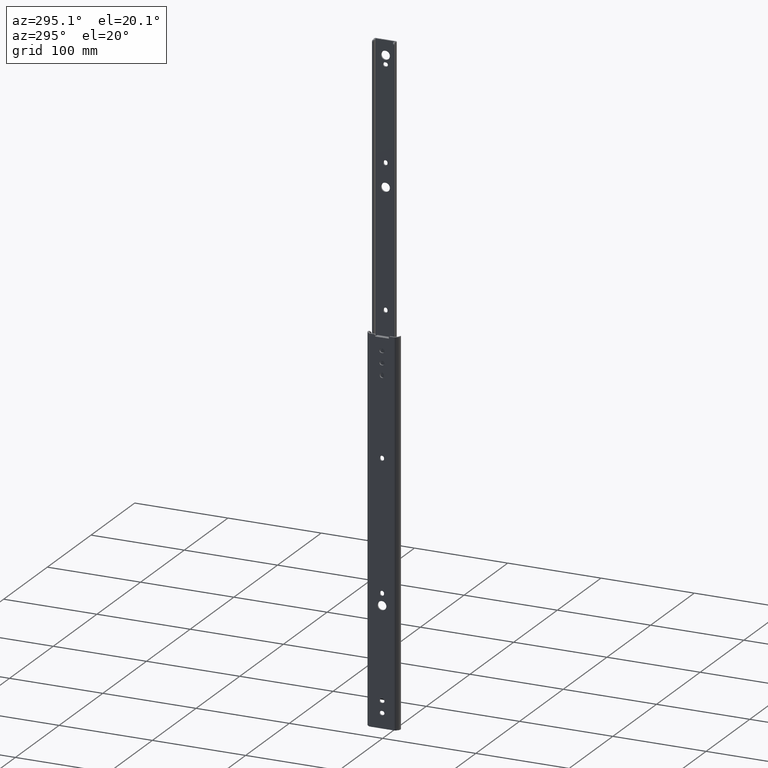
[diagram: clean part render]
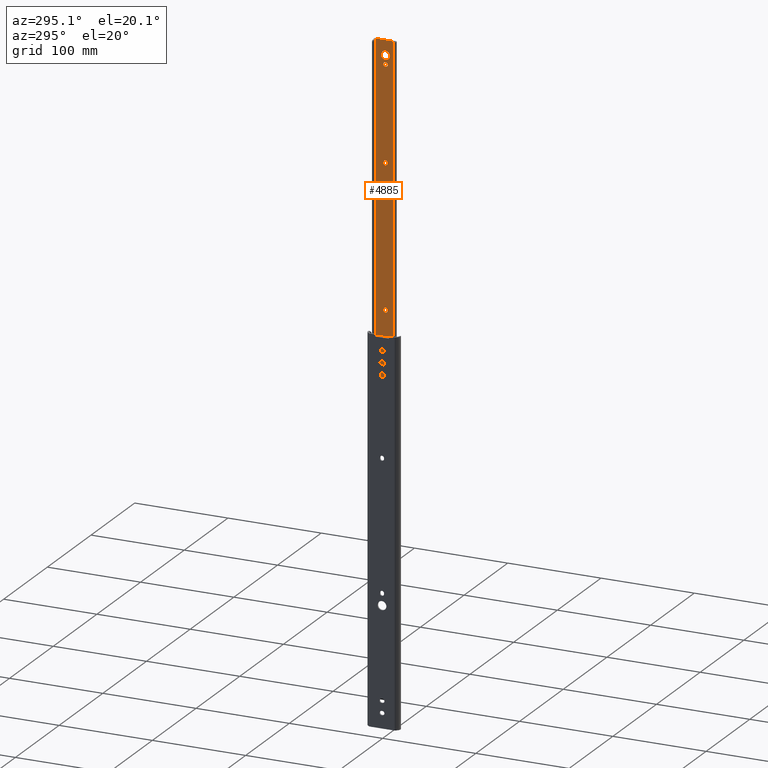
[diagram: same view with one face highlighted and labeled with its STEP entity id]
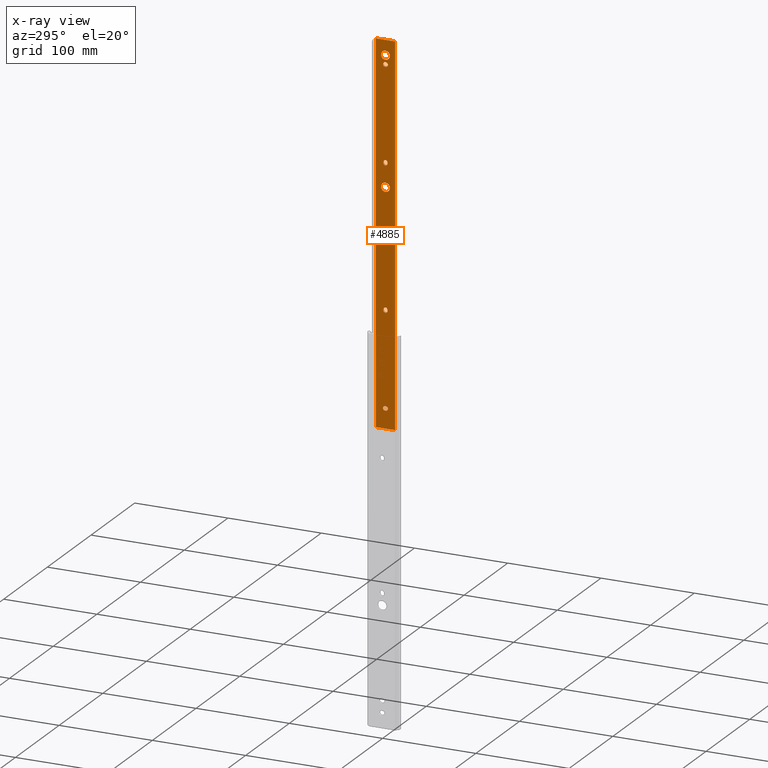
[diagram: x-ray of the same camera — body ghosted, the highlighted face saturated]
A machine part, auxiliary view. The second image highlights one B-rep face of the part: STEP entity #4885.
The next image is the same camera in x-ray: the body ghosted, the highlighted face saturated — about 0% of this face is hidden behind the body in this view.
In plain terms, the highlighted planar face has unit normal (-1, -0, 0).
Its self-contained STEP definition (entity closure, byte-faithful):
#6 = CARTESIAN_POINT ( 'NONE',  ( -1.500000000000004441, 0.3999999999999817590, -381.0000000000000000 ) ) ;
#9 = DIRECTION ( 'NONE',  ( -1.098658201451976985E-14, 1.000000000000000000, 0.0000000000000000000 ) ) ;
#10 = DIRECTION ( 'NONE',  ( -1.103235306215530262E-14, 1.000000000000000000, 0.0000000000000000000 ) ) ;
#15 = DIRECTION ( 'NONE',  ( -1.098658201451977774E-14, 1.000000000000000000, 0.0000000000000000000 ) ) ;
#46 = CARTESIAN_POINT ( 'NONE',  ( -1.500000000000004441, 0.3999999999999975797, -27.65000000000000924 ) ) ;
#88 = EDGE_CURVE ( 'NONE', #4028, #108, #2338, .T. ) ;
#101 = EDGE_LOOP ( 'NONE', ( #2858, #4661 ) ) ;
#108 = VERTEX_POINT ( 'NONE', #1914 ) ;
#169 = ORIENTED_EDGE ( 'NONE', *, *, #4154, .T. ) ;
#212 = PLANE ( 'NONE',  #3361 ) ;
#233 = CARTESIAN_POINT ( 'NONE',  ( -1.499999999999995781, -0.4000000000000085154, -381.0000000000000000 ) ) ;
#253 = CARTESIAN_POINT ( 'NONE',  ( -1.499999999999975353, -2.249999999999992450, -279.0000000000000000 ) ) ;
#268 = VERTEX_POINT ( 'NONE', #2383 ) ;
#279 = CARTESIAN_POINT ( 'NONE',  ( -1.500000000000052403, 4.749999999999985789, -15.90000000000000036 ) ) ;
#284 = AXIS2_PLACEMENT_3D ( 'NONE', #796, #4646, #15 ) ;
#291 = CIRCLE ( 'NONE', #940, 2.250000000000000000 ) ;
#300 = VERTEX_POINT ( 'NONE', #46 ) ;
#323 = CARTESIAN_POINT ( 'NONE',  ( -1.499999999999881872, -10.00000000000000000, -401.9000000000000341 ) ) ;
#328 = DIRECTION ( 'NONE',  ( -1.098658201451977774E-14, 1.000000000000000000, 0.0000000000000000000 ) ) ;
#330 = VERTEX_POINT ( 'NONE', #3162 ) ;
#345 = VERTEX_POINT ( 'NONE', #1419 ) ;
#365 = CIRCLE ( 'NONE', #2377, 2.250000000000000000 ) ;
#399 = DIRECTION ( 'NONE',  ( -0.0000000000000000000, -0.0000000000000000000, 1.000000000000000000 ) ) ;
#405 = ORIENTED_EDGE ( 'NONE', *, *, #4672, .T. ) ;
#418 = EDGE_CURVE ( 'NONE', #3785, #300, #3705, .T. ) ;
#422 = CARTESIAN_POINT ( 'NONE',  ( -1.500000000000085043, 10.28327591912169048, 0.0000000000000000000 ) ) ;
#448 = VECTOR ( 'NONE', #2093, 1000.000000000000000 ) ;
#454 = ORIENTED_EDGE ( 'NONE', *, *, #4979, .T. ) ;
#461 = EDGE_LOOP ( 'NONE', ( #454, #3301, #3977, #3015, #682 ) ) ;
#468 = VECTOR ( 'NONE', #399, 1000.000000000000000 ) ;
#529 = VERTEX_POINT ( 'NONE', #2575 ) ;
#562 = CARTESIAN_POINT ( 'NONE',  ( -1.500000000000004441, 0.3999999999999817590, -381.0000000000000000 ) ) ;
#565 = CARTESIAN_POINT ( 'NONE',  ( -1.500000000000000000, -1.460134118258866334E-14, -15.90000000000000036 ) ) ;
#578 = DIRECTION ( 'NONE',  ( -1.104744950490492665E-14, 1.000000000000000000, 0.0000000000000000000 ) ) ;
#613 = DIRECTION ( 'NONE',  ( -1.000000000000000000, -1.107052159315210633E-14, 0.0000000000000000000 ) ) ;
#627 = CARTESIAN_POINT ( 'NONE',  ( -1.499999999999975353, -2.250000000000000888, -126.6000000000000227 ) ) ;
#637 = EDGE_CURVE ( 'NONE', #300, #268, #3323, .T. ) ;
#643 = VERTEX_POINT ( 'NONE', #3061 ) ;
#679 = EDGE_CURVE ( 'NONE', #2267, #729, #1455, .T. ) ;
#682 = ORIENTED_EDGE ( 'NONE', *, *, #1785, .T. ) ;
#684 = VERTEX_POINT ( 'NONE', #1889 ) ;
#689 = FACE_BOUND ( 'NONE', #3368, .T. ) ;
#729 = VERTEX_POINT ( 'NONE', #3799 ) ;
#749 = DIRECTION ( 'NONE',  ( 1.103235306215530105E-14, -1.000000000000000000, -0.0000000000000000000 ) ) ;
#759 = ORIENTED_EDGE ( 'NONE', *, *, #4678, .F. ) ;
#794 = AXIS2_PLACEMENT_3D ( 'NONE', #4060, #3362, #4438 ) ;
#796 = CARTESIAN_POINT ( 'NONE',  ( -1.500000000000000000, 7.537566158524680055E-15, -279.7999999999999545 ) ) ;
#806 = CARTESIAN_POINT ( 'NONE',  ( -1.499999999999881872, -10.00000000000000000, -401.9000000000000341 ) ) ;
#827 = DIRECTION ( 'NONE',  ( -1.192622389734054877E-16, -1.000000000000000000, -0.0000000000000000000 ) ) ;
#935 = ORIENTED_EDGE ( 'NONE', *, *, #88, .T. ) ;
#940 = AXIS2_PLACEMENT_3D ( 'NONE', #1564, #2646, #328 ) ;
#961 = VERTEX_POINT ( 'NONE', #2902 ) ;
#964 = DIRECTION ( 'NONE',  ( 1.000000000000000000, 1.103235306215530262E-14, 0.0000000000000000000 ) ) ;
#975 = CARTESIAN_POINT ( 'NONE',  ( -1.500000000000000000, -6.121118908110998907E-12, -152.4000000000000909 ) ) ;
#1056 = VERTEX_POINT ( 'NONE', #4815 ) ;
#1072 = CARTESIAN_POINT ( 'NONE',  ( -1.500000000000110800, 9.999999999999998224, -401.8999999999999204 ) ) ;
#1125 = CARTESIAN_POINT ( 'NONE',  ( -1.500000000000024647, 2.249999999999999112, -127.3999999999999915 ) ) ;
#1130 = LINE ( 'NONE', #4170, #2612 ) ;
#1200 = ORIENTED_EDGE ( 'NONE', *, *, #1447, .T. ) ;
#1221 = CARTESIAN_POINT ( 'NONE',  ( -1.499999999999882316, -10.28327591912161054, -403.4000000000000341 ) ) ;
#1262 = DIRECTION ( 'NONE',  ( 0.0000000000000000000, 0.0000000000000000000, -1.000000000000000000 ) ) ;
#1308 = CARTESIAN_POINT ( 'NONE',  ( -1.500000000000029088, 2.649999999999845368, -381.0000000000000000 ) ) ;
#1321 = VERTEX_POINT ( 'NONE', #4340 ) ;
#1340 = DIRECTION ( 'NONE',  ( -1.098658201451977774E-14, 1.000000000000000000, 0.0000000000000000000 ) ) ;
#1345 = AXIS2_PLACEMENT_3D ( 'NONE', #3019, #4829, #1457 ) ;
#1346 = FACE_OUTER_BOUND ( 'NONE', #4564, .T. ) ;
#1362 = CARTESIAN_POINT ( 'NONE',  ( -1.499999999999881872, -10.00000000000000000, -403.4000000000000341 ) ) ;
#1365 = EDGE_CURVE ( 'NONE', #330, #1520, #4384, .T. ) ;
#1385 = DIRECTION ( 'NONE',  ( 1.000000000000000000, 1.103235306215530262E-14, 0.0000000000000000000 ) ) ;
#1403 = CARTESIAN_POINT ( 'NONE',  ( -1.500000000000024647, 2.250000000000007105, -279.0000000000000000 ) ) ;
#1419 = CARTESIAN_POINT ( 'NONE',  ( -1.499999999999995781, -0.4000000000000093481, -378.7500000000001137 ) ) ;
#1427 = VERTEX_POINT ( 'NONE', #1362 ) ;
#1428 = VECTOR ( 'NONE', #827, 1000.000000000000000 ) ;
#1433 = ORIENTED_EDGE ( 'NONE', *, *, #418, .T. ) ;
#1447 = EDGE_CURVE ( 'NONE', #4104, #2177, #4857, .T. ) ;
#1455 = LINE ( 'NONE', #2584, #3407 ) ;
#1457 = DIRECTION ( 'NONE',  ( -1.098658201451976985E-14, 1.000000000000000000, 0.0000000000000000000 ) ) ;
#1503 = CARTESIAN_POINT ( 'NONE',  ( -1.500000000000024647, 2.250000000000007105, -279.0000000000000000 ) ) ;
#1508 = CIRCLE ( 'NONE', #1825, 4.750000000000000888 ) ;
#1520 = VERTEX_POINT ( 'NONE', #1308 ) ;
#1549 = DIRECTION ( 'NONE',  ( 1.000000000000000000, 1.103235306215530262E-14, 0.0000000000000000000 ) ) ;
#1552 = LINE ( 'NONE', #806, #1428 ) ;
#1553 = DIRECTION ( 'NONE',  ( 0.0000000000000000000, 0.0000000000000000000, -1.000000000000000000 ) ) ;
#1564 = CARTESIAN_POINT ( 'NONE',  ( -1.500000000000000000, -9.270955371676162504E-16, -126.6000000000000227 ) ) ;
#1597 = CIRCLE ( 'NONE', #3284, 2.249999999999863221 ) ;
#1618 = ORIENTED_EDGE ( 'NONE', *, *, #2018, .T. ) ;
#1663 = CARTESIAN_POINT ( 'NONE',  ( -1.500000000000085043, 10.28327591912169048, -403.4000000000000341 ) ) ;
#1746 = DIRECTION ( 'NONE',  ( 1.000000000000000000, 1.103235306215530262E-14, 0.0000000000000000000 ) ) ;
#1770 = DIRECTION ( 'NONE',  ( -1.098658201452044669E-14, 1.000000000000000000, 0.0000000000000000000 ) ) ;
#1775 = VERTEX_POINT ( 'NONE', #1072 ) ;
#1785 = EDGE_CURVE ( 'NONE', #3241, #345, #1130, .T. ) ;
#1799 = VERTEX_POINT ( 'NONE', #2928 ) ;
#1825 = AXIS2_PLACEMENT_3D ( 'NONE', #4359, #964, #578 ) ;
#1886 = LINE ( 'NONE', #3423, #3519 ) ;
#1889 = CARTESIAN_POINT ( 'NONE',  ( -1.499999999999882316, -10.28327591912161054, -403.4000000000000341 ) ) ;
#1903 = VECTOR ( 'NONE', #10, 1000.000000000000000 ) ;
#1914 = CARTESIAN_POINT ( 'NONE',  ( -1.499999999999975131, -2.250000000000000444, -127.4000000000000199 ) ) ;
#1926 = AXIS2_PLACEMENT_3D ( 'NONE', #565, #4371, #2455 ) ;
#2018 = EDGE_CURVE ( 'NONE', #108, #2267, #365, .T. ) ;
#2037 = LINE ( 'NONE', #2815, #4315 ) ;
#2064 = DIRECTION ( 'NONE',  ( 8.265989456220335614E-15, -1.000000000000000000, 0.0000000000000000000 ) ) ;
#2093 = DIRECTION ( 'NONE',  ( 8.265989456220335614E-15, -1.000000000000000000, 0.0000000000000000000 ) ) ;
#2104 = CARTESIAN_POINT ( 'NONE',  ( -1.499999999999947597, -4.750000000006124878, -152.4000000000000909 ) ) ;
#2120 = DIRECTION ( 'NONE',  ( 1.107052159315210633E-14, -1.000000000000000000, 0.0000000000000000000 ) ) ;
#2124 = EDGE_LOOP ( 'NONE', ( #3041, #4752 ) ) ;
#2133 = CARTESIAN_POINT ( 'NONE',  ( -1.499999999999975353, -2.249999999999992450, -279.0000000000000000 ) ) ;
#2148 = DIRECTION ( 'NONE',  ( -1.103235306215530262E-14, 1.000000000000000000, 0.0000000000000000000 ) ) ;
#2176 = DIRECTION ( 'NONE',  ( 1.000000000000000000, 1.103235306215530262E-14, 0.0000000000000000000 ) ) ;
#2177 = VERTEX_POINT ( 'NONE', #253 ) ;
#2232 = AXIS2_PLACEMENT_3D ( 'NONE', #975, #2176, #4143 ) ;
#2240 = VERTEX_POINT ( 'NONE', #4165 ) ;
#2261 = CARTESIAN_POINT ( 'NONE',  ( -1.499999999999975353, -2.250000000000000888, -126.6000000000000227 ) ) ;
#2267 = VERTEX_POINT ( 'NONE', #1125 ) ;
#2294 = AXIS2_PLACEMENT_3D ( 'NONE', #4486, #4787, #1340 ) ;
#2310 = EDGE_CURVE ( 'NONE', #684, #2658, #4668, .T. ) ;
#2328 = ORIENTED_EDGE ( 'NONE', *, *, #3309, .F. ) ;
#2338 = LINE ( 'NONE', #2261, #3320 ) ;
#2341 = EDGE_CURVE ( 'NONE', #3708, #2663, #3511, .T. ) ;
#2377 = AXIS2_PLACEMENT_3D ( 'NONE', #4436, #1746, #4789 ) ;
#2382 = FACE_BOUND ( 'NONE', #2569, .T. ) ;
#2383 = CARTESIAN_POINT ( 'NONE',  ( -1.500000000000029088, 2.649999999999983924, -25.39999999999999858 ) ) ;
#2428 = ORIENTED_EDGE ( 'NONE', *, *, #2834, .F. ) ;
#2455 = DIRECTION ( 'NONE',  ( -1.104744950490492665E-14, 1.000000000000000000, 0.0000000000000000000 ) ) ;
#2466 = LINE ( 'NONE', #1663, #3110 ) ;
#2472 = LINE ( 'NONE', #3177, #448 ) ;
#2558 = ORIENTED_EDGE ( 'NONE', *, *, #3037, .T. ) ;
#2569 = EDGE_LOOP ( 'NONE', ( #1200, #3096, #3436, #405 ) ) ;
#2572 = EDGE_CURVE ( 'NONE', #1427, #684, #2472, .T. ) ;
#2575 = CARTESIAN_POINT ( 'NONE',  ( -1.500000000000052403, 4.749999999993883115, -152.4000000000000909 ) ) ;
#2581 = ORIENTED_EDGE ( 'NONE', *, *, #3558, .T. ) ;
#2584 = CARTESIAN_POINT ( 'NONE',  ( -1.500000000000024647, 2.249999999999999112, -126.6000000000000227 ) ) ;
#2587 = CARTESIAN_POINT ( 'NONE',  ( -1.499999999999882316, -10.28327591912161054, 0.0000000000000000000 ) ) ;
#2588 = ORIENTED_EDGE ( 'NONE', *, *, #2935, .T. ) ;
#2607 = AXIS2_PLACEMENT_3D ( 'NONE', #562, #3233, #4435 ) ;
#2612 = VECTOR ( 'NONE', #749, 1000.000000000000000 ) ;
#2646 = DIRECTION ( 'NONE',  ( 1.000000000000000000, 1.103235306215530262E-14, 0.0000000000000000000 ) ) ;
#2658 = VERTEX_POINT ( 'NONE', #2587 ) ;
#2663 = VERTEX_POINT ( 'NONE', #4053 ) ;
#2693 = DIRECTION ( 'NONE',  ( 1.000000000000000000, 1.103235306215530262E-14, 0.0000000000000000000 ) ) ;
#2699 = CARTESIAN_POINT ( 'NONE',  ( -1.500000000000004441, 0.3999999999999808709, -23.14999999999999858 ) ) ;
#2712 = VECTOR ( 'NONE', #1262, 1000.000000000000000 ) ;
#2747 = CARTESIAN_POINT ( 'NONE',  ( -1.499999999999995781, -0.4000000000000085154, -27.65000000000000213 ) ) ;
#2754 = EDGE_CURVE ( 'NONE', #961, #330, #3485, .T. ) ;
#2755 = FACE_BOUND ( 'NONE', #101, .T. ) ;
#2815 = CARTESIAN_POINT ( 'NONE',  ( -1.499999999999995781, -0.4000000000000085154, -23.14999999999999858 ) ) ;
#2834 = EDGE_CURVE ( 'NONE', #3202, #2658, #3400, .T. ) ;
#2858 = ORIENTED_EDGE ( 'NONE', *, *, #4946, .T. ) ;
#2902 = CARTESIAN_POINT ( 'NONE',  ( -1.499999999999995781, -0.4000000000000093481, -383.2499999999998863 ) ) ;
#2928 = CARTESIAN_POINT ( 'NONE',  ( -1.499999999999947597, -4.750000000000015099, -15.90000000000000036 ) ) ;
#2935 = EDGE_CURVE ( 'NONE', #2240, #1321, #2466, .T. ) ;
#2943 = CIRCLE ( 'NONE', #3592, 2.250000000000001776 ) ;
#2986 = DIRECTION ( 'NONE',  ( 1.103235306215530262E-14, -1.000000000000000000, -0.0000000000000000000 ) ) ;
#3015 = ORIENTED_EDGE ( 'NONE', *, *, #4214, .T. ) ;
#3019 = CARTESIAN_POINT ( 'NONE',  ( -1.500000000000004441, 0.3999999999999817590, -25.39999999999999858 ) ) ;
#3037 = EDGE_CURVE ( 'NONE', #3808, #1056, #2037, .T. ) ;
#3041 = ORIENTED_EDGE ( 'NONE', *, *, #4848, .T. ) ;
#3042 = VECTOR ( 'NONE', #4254, 1000.000000000000000 ) ;
#3045 = ORIENTED_EDGE ( 'NONE', *, *, #3596, .T. ) ;
#3052 = CARTESIAN_POINT ( 'NONE',  ( -1.499999999999995781, -0.4000000000000085154, -25.39999999999999858 ) ) ;
#3061 = CARTESIAN_POINT ( 'NONE',  ( -1.499999999999889200, -10.00000000000000000, -401.8999999999999204 ) ) ;
#3096 = ORIENTED_EDGE ( 'NONE', *, *, #3941, .T. ) ;
#3110 = VECTOR ( 'NONE', #2064, 1000.000000000000000 ) ;
#3146 = VERTEX_POINT ( 'NONE', #2104 ) ;
#3154 = ORIENTED_EDGE ( 'NONE', *, *, #637, .T. ) ;
#3162 = CARTESIAN_POINT ( 'NONE',  ( -1.500000000000004441, 0.4000000000001294187, -383.2499999999998863 ) ) ;
#3177 = CARTESIAN_POINT ( 'NONE',  ( -1.500000000000085043, 10.28327591912169048, -403.4000000000000341 ) ) ;
#3188 = VECTOR ( 'NONE', #4258, 1000.000000000000000 ) ;
#3196 = CIRCLE ( 'NONE', #1345, 2.250000000000001776 ) ;
#3199 = EDGE_CURVE ( 'NONE', #643, #1427, #3477, .T. ) ;
#3202 = VERTEX_POINT ( 'NONE', #422 ) ;
#3207 = ORIENTED_EDGE ( 'NONE', *, *, #679, .T. ) ;
#3233 = DIRECTION ( 'NONE',  ( 1.000000000000000000, 1.103235306215530262E-14, 0.0000000000000000000 ) ) ;
#3241 = VERTEX_POINT ( 'NONE', #3499 ) ;
#3275 = LINE ( 'NONE', #2133, #2712 ) ;
#3284 = AXIS2_PLACEMENT_3D ( 'NONE', #233, #1385, #1770 ) ;
#3301 = ORIENTED_EDGE ( 'NONE', *, *, #2754, .T. ) ;
#3306 = CARTESIAN_POINT ( 'NONE',  ( -1.499999999999995781, -0.4000000000000085154, -27.65000000000000213 ) ) ;
#3309 = EDGE_CURVE ( 'NONE', #2240, #3202, #1886, .T. ) ;
#3320 = VECTOR ( 'NONE', #1553, 1000.000000000000000 ) ;
#3323 = CIRCLE ( 'NONE', #4290, 2.250000000000001776 ) ;
#3331 = FACE_BOUND ( 'NONE', #3603, .T. ) ;
#3361 = AXIS2_PLACEMENT_3D ( 'NONE', #4837, #613, #2120 ) ;
#3362 = DIRECTION ( 'NONE',  ( 1.000000000000000000, 1.103235306215530262E-14, 0.0000000000000000000 ) ) ;
#3368 = EDGE_LOOP ( 'NONE', ( #2581, #1433, #3154, #169, #2558 ) ) ;
#3400 = LINE ( 'NONE', #3834, #4867 ) ;
#3407 = VECTOR ( 'NONE', #4585, 1000.000000000000000 ) ;
#3423 = CARTESIAN_POINT ( 'NONE',  ( -1.500000000000085043, 10.28327591912169048, -403.4000000000000341 ) ) ;
#3433 = CARTESIAN_POINT ( 'NONE',  ( -1.499999999999995781, -0.4000000000000093481, -383.2499999999998863 ) ) ;
#3436 = ORIENTED_EDGE ( 'NONE', *, *, #2341, .T. ) ;
#3447 = CIRCLE ( 'NONE', #4004, 2.249999999999863221 ) ;
#3449 = LINE ( 'NONE', #1503, #468 ) ;
#3477 = LINE ( 'NONE', #323, #3188 ) ;
#3485 = LINE ( 'NONE', #3433, #1903 ) ;
#3499 = CARTESIAN_POINT ( 'NONE',  ( -1.500000000000004441, 0.4000000000001124323, -378.7500000000001137 ) ) ;
#3511 = CIRCLE ( 'NONE', #284, 2.250000000000000000 ) ;
#3519 = VECTOR ( 'NONE', #4955, 1000.000000000000000 ) ;
#3527 = DIRECTION ( 'NONE',  ( -1.098658201452044669E-14, 1.000000000000000000, 0.0000000000000000000 ) ) ;
#3550 = ORIENTED_EDGE ( 'NONE', *, *, #2572, .T. ) ;
#3558 = EDGE_CURVE ( 'NONE', #1056, #3785, #2943, .T. ) ;
#3581 = ORIENTED_EDGE ( 'NONE', *, *, #4696, .T. ) ;
#3592 = AXIS2_PLACEMENT_3D ( 'NONE', #3052, #4589, #9 ) ;
#3596 = EDGE_CURVE ( 'NONE', #729, #4028, #291, .T. ) ;
#3603 = EDGE_LOOP ( 'NONE', ( #3045, #935, #1618, #3207 ) ) ;
#3705 = LINE ( 'NONE', #3306, #3895 ) ;
#3708 = VERTEX_POINT ( 'NONE', #3756 ) ;
#3722 = ORIENTED_EDGE ( 'NONE', *, *, #3199, .T. ) ;
#3756 = CARTESIAN_POINT ( 'NONE',  ( -1.499999999999975131, -2.249999999999991562, -279.7999999999999545 ) ) ;
#3762 = CIRCLE ( 'NONE', #794, 4.750000000000004441 ) ;
#3774 = VERTEX_POINT ( 'NONE', #279 ) ;
#3785 = VERTEX_POINT ( 'NONE', #2747 ) ;
#3799 = CARTESIAN_POINT ( 'NONE',  ( -1.500000000000024647, 2.249999999999999112, -126.6000000000000227 ) ) ;
#3808 = VERTEX_POINT ( 'NONE', #2699 ) ;
#3821 = LINE ( 'NONE', #4274, #3042 ) ;
#3834 = CARTESIAN_POINT ( 'NONE',  ( -1.499999999999886091, -10.28327591912161054, 0.0000000000000000000 ) ) ;
#3840 = DIRECTION ( 'NONE',  ( 0.0000000000000000000, 0.0000000000000000000, 1.000000000000000000 ) ) ;
#3895 = VECTOR ( 'NONE', #2148, 1000.000000000000000 ) ;
#3935 = EDGE_CURVE ( 'NONE', #1799, #3774, #1508, .T. ) ;
#3941 = EDGE_CURVE ( 'NONE', #2177, #3708, #3275, .T. ) ;
#3977 = ORIENTED_EDGE ( 'NONE', *, *, #1365, .T. ) ;
#4004 = AXIS2_PLACEMENT_3D ( 'NONE', #6, #2693, #3527 ) ;
#4028 = VERTEX_POINT ( 'NONE', #627 ) ;
#4053 = CARTESIAN_POINT ( 'NONE',  ( -1.500000000000024647, 2.250000000000007105, -279.7999999999999545 ) ) ;
#4060 = CARTESIAN_POINT ( 'NONE',  ( -1.500000000000000000, -6.121118908110998907E-12, -152.4000000000000909 ) ) ;
#4077 = CIRCLE ( 'NONE', #2232, 4.750000000000004441 ) ;
#4084 = CIRCLE ( 'NONE', #1926, 4.750000000000000888 ) ;
#4104 = VERTEX_POINT ( 'NONE', #1403 ) ;
#4143 = DIRECTION ( 'NONE',  ( -1.104744950490491876E-14, 1.000000000000000000, 0.0000000000000000000 ) ) ;
#4154 = EDGE_CURVE ( 'NONE', #268, #3808, #3196, .T. ) ;
#4165 = CARTESIAN_POINT ( 'NONE',  ( -1.500000000000085043, 10.28327591912169048, -403.4000000000000341 ) ) ;
#4170 = CARTESIAN_POINT ( 'NONE',  ( -1.499999999999995781, -0.4000000000000093481, -378.7500000000001137 ) ) ;
#4214 = EDGE_CURVE ( 'NONE', #1520, #3241, #3447, .T. ) ;
#4218 = DIRECTION ( 'NONE',  ( -1.098658201451976985E-14, 1.000000000000000000, 0.0000000000000000000 ) ) ;
#4254 = DIRECTION ( 'NONE',  ( 0.0000000000000000000, 0.0000000000000000000, -1.000000000000000000 ) ) ;
#4258 = DIRECTION ( 'NONE',  ( 0.0000000000000000000, 0.0000000000000000000, -1.000000000000000000 ) ) ;
#4274 = CARTESIAN_POINT ( 'NONE',  ( -1.499999999999879430, 10.00000000000000000, -401.9000000000000341 ) ) ;
#4290 = AXIS2_PLACEMENT_3D ( 'NONE', #4918, #1549, #4218 ) ;
#4295 = FACE_BOUND ( 'NONE', #461, .T. ) ;
#4315 = VECTOR ( 'NONE', #2986, 1000.000000000000000 ) ;
#4340 = CARTESIAN_POINT ( 'NONE',  ( -1.500000000000082601, 9.999999999999957367, -403.4000000000000341 ) ) ;
#4359 = CARTESIAN_POINT ( 'NONE',  ( -1.500000000000000000, -1.460134118258866334E-14, -15.90000000000000036 ) ) ;
#4371 = DIRECTION ( 'NONE',  ( 1.000000000000000000, 1.103235306215530262E-14, 0.0000000000000000000 ) ) ;
#4384 = CIRCLE ( 'NONE', #2607, 2.249999999999863221 ) ;
#4435 = DIRECTION ( 'NONE',  ( -1.098658201452044669E-14, 1.000000000000000000, 0.0000000000000000000 ) ) ;
#4436 = CARTESIAN_POINT ( 'NONE',  ( -1.500000000000000000, -7.801379212699414879E-16, -127.3999999999999915 ) ) ;
#4438 = DIRECTION ( 'NONE',  ( -1.104744950490491876E-14, 1.000000000000000000, 0.0000000000000000000 ) ) ;
#4486 = CARTESIAN_POINT ( 'NONE',  ( -1.500000000000000000, 7.390608542627015548E-15, -279.0000000000000000 ) ) ;
#4490 = EDGE_CURVE ( 'NONE', #3146, #529, #4077, .T. ) ;
#4564 = EDGE_LOOP ( 'NONE', ( #3722, #3550, #4718, #2428, #2328, #2588, #759, #3581 ) ) ;
#4585 = DIRECTION ( 'NONE',  ( -0.0000000000000000000, -0.0000000000000000000, 1.000000000000000000 ) ) ;
#4589 = DIRECTION ( 'NONE',  ( 1.000000000000000000, 1.103235306215530262E-14, 0.0000000000000000000 ) ) ;
#4646 = DIRECTION ( 'NONE',  ( 1.000000000000000000, 1.103235306215530262E-14, 0.0000000000000000000 ) ) ;
#4661 = ORIENTED_EDGE ( 'NONE', *, *, #4490, .T. ) ;
#4668 = LINE ( 'NONE', #1221, #4949 ) ;
#4672 = EDGE_CURVE ( 'NONE', #2663, #4104, #3449, .T. ) ;
#4676 = FACE_BOUND ( 'NONE', #2124, .T. ) ;
#4678 = EDGE_CURVE ( 'NONE', #1775, #1321, #3821, .T. ) ;
#4696 = EDGE_CURVE ( 'NONE', #1775, #643, #1552, .T. ) ;
#4718 = ORIENTED_EDGE ( 'NONE', *, *, #2310, .T. ) ;
#4752 = ORIENTED_EDGE ( 'NONE', *, *, #3935, .T. ) ;
#4787 = DIRECTION ( 'NONE',  ( 1.000000000000000000, 1.103235306215530262E-14, 0.0000000000000000000 ) ) ;
#4789 = DIRECTION ( 'NONE',  ( -1.098658201451977774E-14, 1.000000000000000000, 0.0000000000000000000 ) ) ;
#4815 = CARTESIAN_POINT ( 'NONE',  ( -1.499999999999995781, -0.4000000000000085154, -23.14999999999999858 ) ) ;
#4829 = DIRECTION ( 'NONE',  ( 1.000000000000000000, 1.103235306215530262E-14, 0.0000000000000000000 ) ) ;
#4837 = CARTESIAN_POINT ( 'NONE',  ( -1.499999999999886091, -10.28327591912161054, -403.4000000000000341 ) ) ;
#4848 = EDGE_CURVE ( 'NONE', #3774, #1799, #4084, .T. ) ;
#4857 = CIRCLE ( 'NONE', #2294, 2.250000000000000000 ) ;
#4867 = VECTOR ( 'NONE', #4934, 1000.000000000000000 ) ;
#4885 = ADVANCED_FACE ( 'NONE', ( #4676, #2755, #4295, #2382, #3331, #689, #1346 ), #212, .T. ) ;
#4918 = CARTESIAN_POINT ( 'NONE',  ( -1.500000000000004441, 0.3999999999999817590, -25.39999999999999858 ) ) ;
#4934 = DIRECTION ( 'NONE',  ( 1.107052159315210791E-14, -1.000000000000000000, -0.0000000000000000000 ) ) ;
#4946 = EDGE_CURVE ( 'NONE', #529, #3146, #3762, .T. ) ;
#4949 = VECTOR ( 'NONE', #3840, 1000.000000000000000 ) ;
#4955 = DIRECTION ( 'NONE',  ( 0.0000000000000000000, 0.0000000000000000000, 1.000000000000000000 ) ) ;
#4979 = EDGE_CURVE ( 'NONE', #345, #961, #1597, .T. ) ;